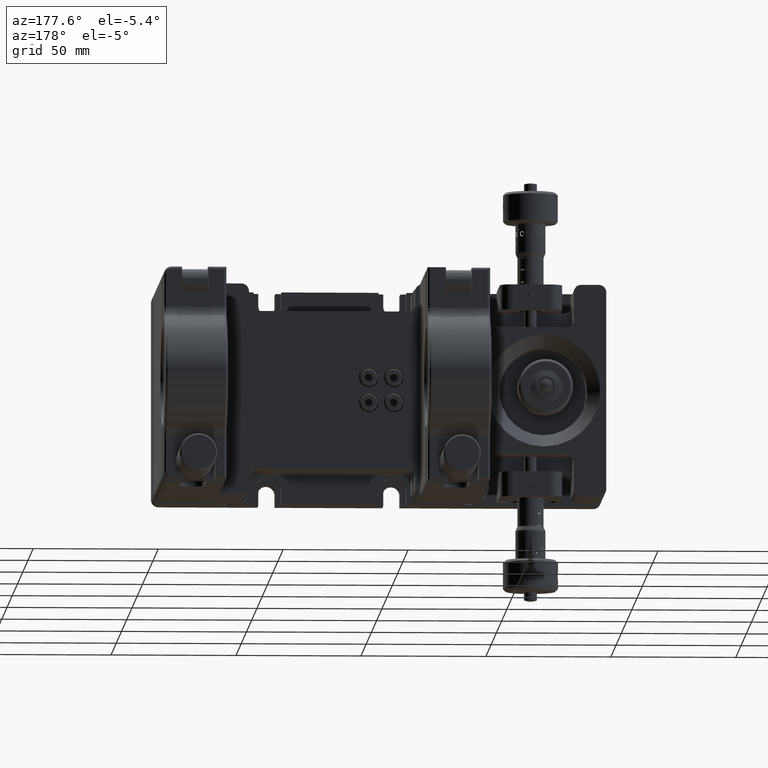
[diagram: clean part render]
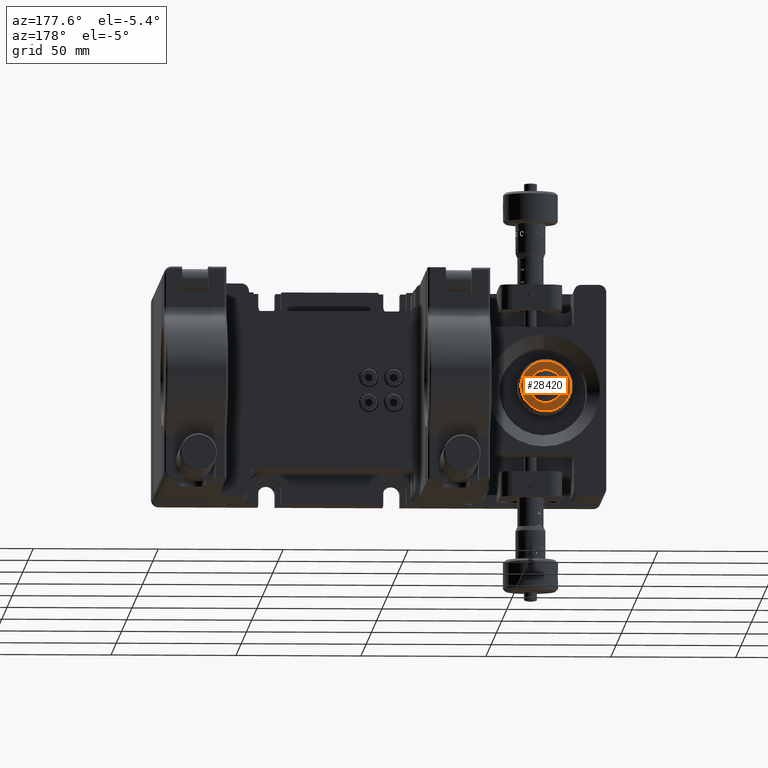
[diagram: same view with one face highlighted and labeled with its STEP entity id]
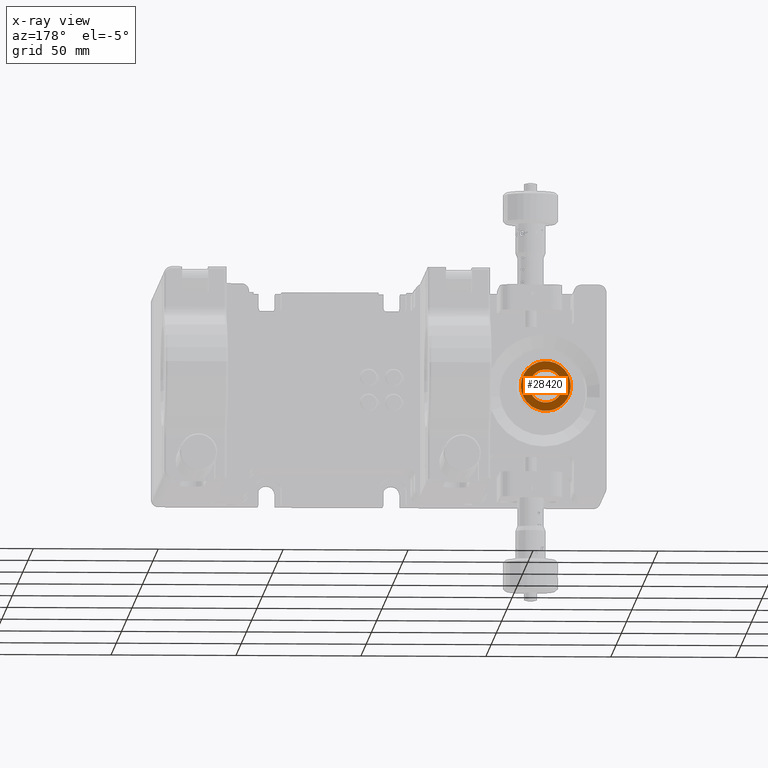
[diagram: x-ray of the same camera — body ghosted, the highlighted face saturated]
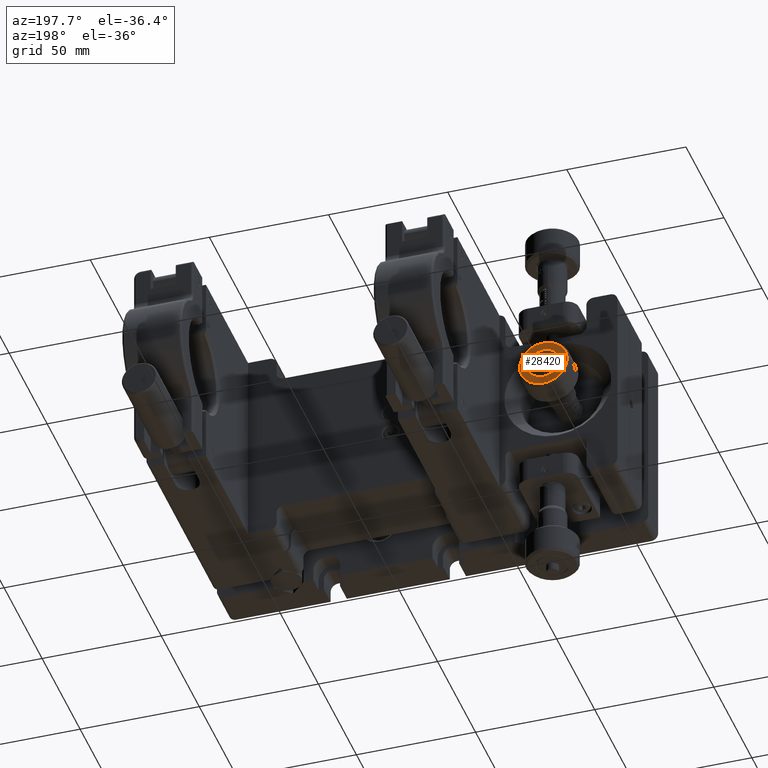
[diagram: same view with one face highlighted and labeled with its STEP entity id]
A machine part, auxiliary view. The second image highlights one B-rep face of the part: STEP entity #28420.
The next image is the same camera in x-ray: the body ghosted, the highlighted face saturated — about 0% of this face is hidden behind the body in this view.
A second angle (auxiliary view) of the same face is appended — the face is thin or edge-on in the first view.
In plain terms, the highlighted planar face has unit normal (-0, -1, 0).
Its self-contained STEP definition (entity closure, byte-faithful):
#1792 = PLANE ( 'NONE',  #33706 ) ;
#1864 = VERTEX_POINT ( 'NONE', #29646 ) ;
#3869 = EDGE_CURVE ( 'NONE', #24181, #1864, #11575, .T. ) ;
#4730 = ORIENTED_EDGE ( 'NONE', *, *, #42809, .T. ) ;
#8239 = CARTESIAN_POINT ( 'NONE',  ( -65.00000000000004263, 64.50000000000009948, -1.147575682297349671E-13 ) ) ;
#8591 = ORIENTED_EDGE ( 'NONE', *, *, #56309, .T. ) ;
#10581 = DIRECTION ( 'NONE',  ( 6.217227905694692841E-17, 1.000000000000000000, -1.287454130002863064E-15 ) ) ;
#10647 = CIRCLE ( 'NONE', #34474, 6.649999999999996803 ) ;
#11575 = CIRCLE ( 'NONE', #13414, 9.999999999999985789 ) ;
#12602 = CARTESIAN_POINT ( 'NONE',  ( -58.35134744151781661, 64.50000000000009948, 0.1338624539880692299 ) ) ;
#13414 = AXIS2_PLACEMENT_3D ( 'NONE', #8239, #16568, #47268 ) ;
#14143 = DIRECTION ( 'NONE',  ( -2.977196822391911384E-16, -1.000000000000000000, 1.282711672317915704E-15 ) ) ;
#14885 = DIRECTION ( 'NONE',  ( -0.9997973772153724292, 0.000000000000000000, -0.02012969232905082936 ) ) ;
#16568 = DIRECTION ( 'NONE',  ( 6.217227905694692841E-17, 1.000000000000000000, -1.287454130002863064E-15 ) ) ;
#17000 = DIRECTION ( 'NONE',  ( -6.217227905694692841E-17, -1.000000000000000000, 1.287454130002863064E-15 ) ) ;
#17456 = AXIS2_PLACEMENT_3D ( 'NONE', #56200, #20889, #38690 ) ;
#20308 = CARTESIAN_POINT ( 'NONE',  ( -71.64865255848226866, 64.50000000000009948, -0.1338624539883075948 ) ) ;
#20889 = DIRECTION ( 'NONE',  ( -6.217227905694692841E-17, -1.000000000000000000, 1.287454130002863064E-15 ) ) ;
#23171 = EDGE_LOOP ( 'NONE', ( #4730, #39352 ) ) ;
#23779 = EDGE_CURVE ( 'NONE', #56245, #55321, #43221, .T. ) ;
#24181 = VERTEX_POINT ( 'NONE', #39186 ) ;
#28181 = CIRCLE ( 'NONE', #32773, 9.999999999999985789 ) ;
#28420 = ADVANCED_FACE ( 'NONE', ( #53478, #32222 ), #1792, .F. ) ;
#29646 = CARTESIAN_POINT ( 'NONE',  ( -55.00202622784635054, 64.50000000000009948, 0.2012969232903921990 ) ) ;
#32222 = FACE_BOUND ( 'NONE', #23171, .T. ) ;
#32773 = AXIS2_PLACEMENT_3D ( 'NONE', #54219, #10581, #14885 ) ;
#33706 = AXIS2_PLACEMENT_3D ( 'NONE', #49159, #14143, #41126 ) ;
#34474 = AXIS2_PLACEMENT_3D ( 'NONE', #52023, #17000, #46585 ) ;
#35018 = EDGE_LOOP ( 'NONE', ( #39073, #8591 ) ) ;
#38690 = DIRECTION ( 'NONE',  ( -0.9997973772153724292, 0.000000000000000000, -0.02012969232905082936 ) ) ;
#39073 = ORIENTED_EDGE ( 'NONE', *, *, #3869, .T. ) ;
#39186 = CARTESIAN_POINT ( 'NONE',  ( -74.99797377215372762, 64.50000000000009948, -0.2012969232906222095 ) ) ;
#39352 = ORIENTED_EDGE ( 'NONE', *, *, #23779, .T. ) ;
#41126 = DIRECTION ( 'NONE',  ( -0.9997973772153724292, 2.718387661374954393E-16, -0.02012969232905083977 ) ) ;
#42809 = EDGE_CURVE ( 'NONE', #55321, #56245, #10647, .T. ) ;
#43221 = CIRCLE ( 'NONE', #17456, 6.649999999999996803 ) ;
#46585 = DIRECTION ( 'NONE',  ( -0.9997973772153724292, 0.000000000000000000, -0.02012969232905082936 ) ) ;
#47268 = DIRECTION ( 'NONE',  ( -0.9997973772153724292, 0.000000000000000000, -0.02012969232905082936 ) ) ;
#49159 = CARTESIAN_POINT ( 'NONE',  ( -65.00000000000004263, 64.50000000000009948, -1.147575682297349671E-13 ) ) ;
#52023 = CARTESIAN_POINT ( 'NONE',  ( -65.00000000000004263, 64.50000000000009948, -1.147575682297349671E-13 ) ) ;
#53478 = FACE_OUTER_BOUND ( 'NONE', #35018, .T. ) ;
#54219 = CARTESIAN_POINT ( 'NONE',  ( -65.00000000000004263, 64.50000000000009948, -1.147575682297349671E-13 ) ) ;
#55321 = VERTEX_POINT ( 'NONE', #12602 ) ;
#56200 = CARTESIAN_POINT ( 'NONE',  ( -65.00000000000004263, 64.50000000000009948, -1.147575682297349671E-13 ) ) ;
#56245 = VERTEX_POINT ( 'NONE', #20308 ) ;
#56309 = EDGE_CURVE ( 'NONE', #1864, #24181, #28181, .T. ) ;